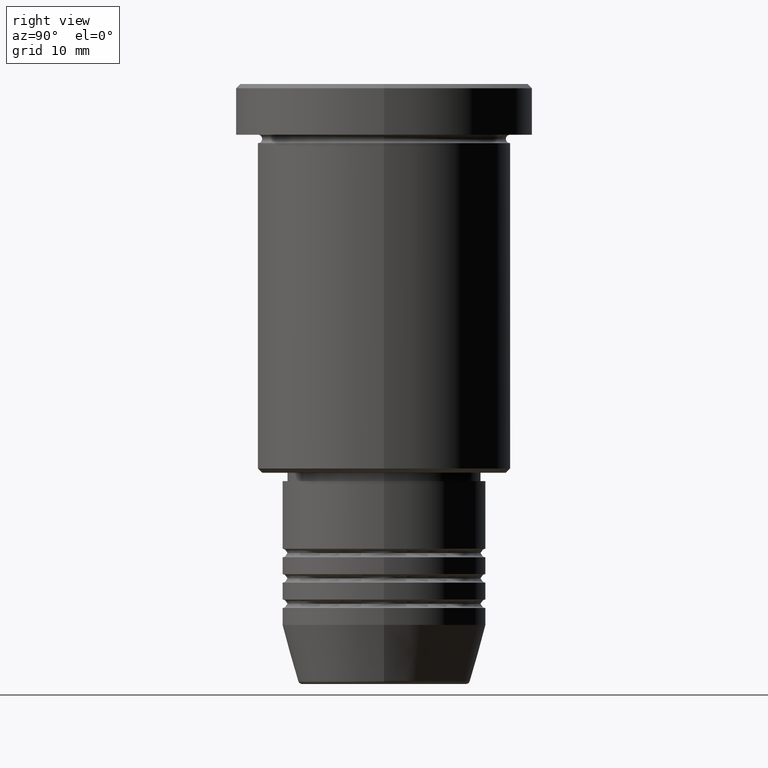
[diagram: clean part render]
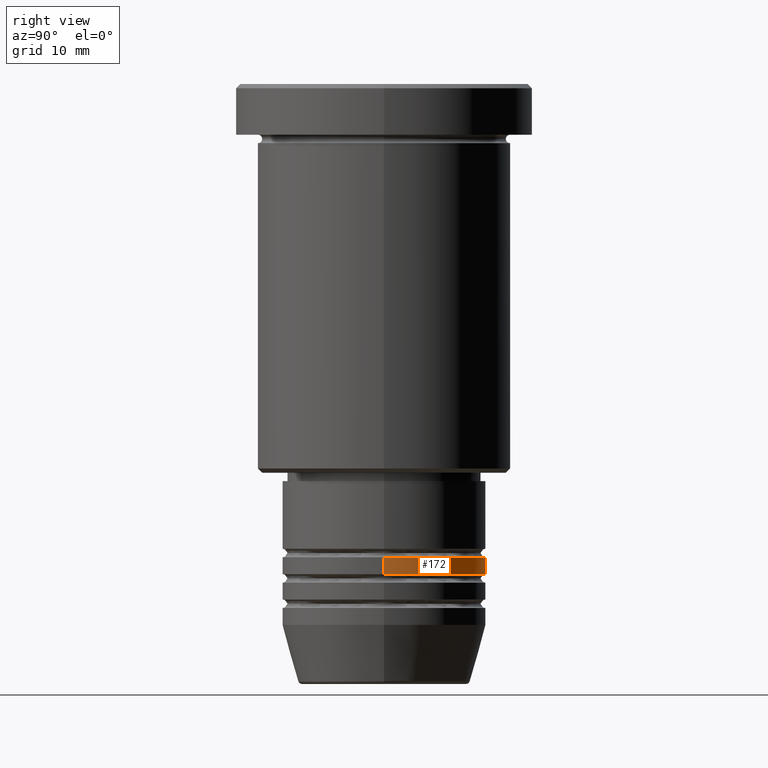
[diagram: same view with one face highlighted and labeled with its STEP entity id]
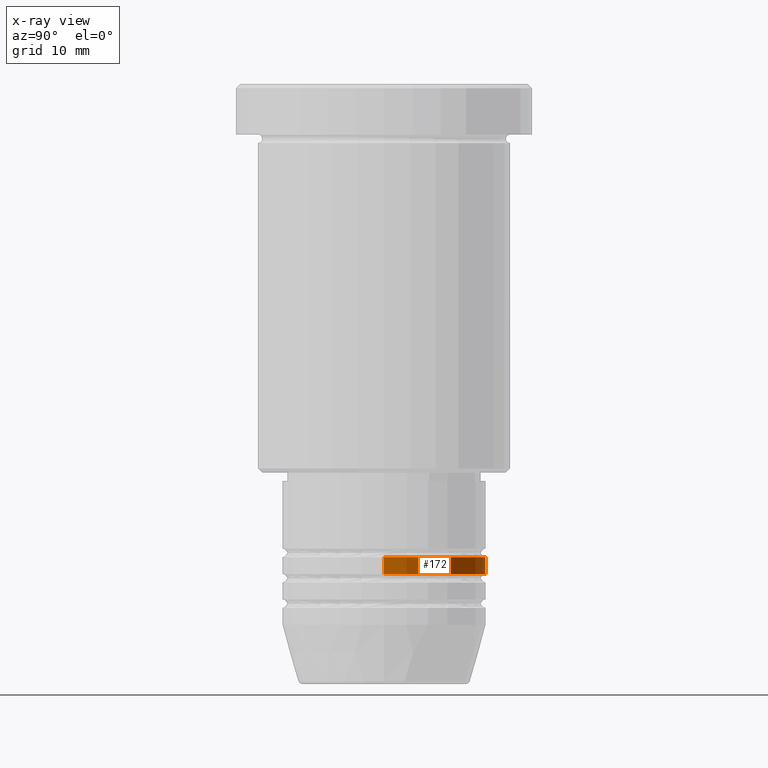
[diagram: x-ray of the same camera — body ghosted, the highlighted face saturated]
A machine part, right view. The second image highlights one B-rep face of the part: STEP entity #172.
The next image is the same camera in x-ray: the body ghosted, the highlighted face saturated — about 0% of this face is hidden behind the body in this view.
In plain terms, the highlighted cylindrical surface (partial cylindrical patch) has radius 12 mm, axis along (-0, -0, 1).
Its self-contained STEP definition (entity closure, byte-faithful):
#38 = CIRCLE ( 'NONE', #549, 12.00000000000000000 ) ;
#64 = DIRECTION ( 'NONE',  ( 1.000000000000000000, 0.000000000000000000, 0.000000000000000000 ) ) ;
#120 = AXIS2_PLACEMENT_3D ( 'NONE', #884, #517, #64 ) ;
#172 = ADVANCED_FACE ( 'NONE', ( #798 ), #245, .T. ) ;
#175 = CARTESIAN_POINT ( 'NONE',  ( 12.00000000000000000, 0.000000000000000000, -55.99999999999997868 ) ) ;
#185 = EDGE_CURVE ( 'NONE', #739, #368, #783, .T. ) ;
#203 = AXIS2_PLACEMENT_3D ( 'NONE', #796, #967, #522 ) ;
#230 = DIRECTION ( 'NONE',  ( -0.000000000000000000, -0.000000000000000000, 1.000000000000000000 ) ) ;
#245 = CYLINDRICAL_SURFACE ( 'NONE', #203, 12.00000000000000000 ) ;
#302 = ORIENTED_EDGE ( 'NONE', *, *, #185, .F. ) ;
#321 = EDGE_CURVE ( 'NONE', #759, #739, #997, .T. ) ;
#363 = CARTESIAN_POINT ( 'NONE',  ( 12.00000000000000000, 0.000000000000000000, 0.000000000000000000 ) ) ;
#368 = VERTEX_POINT ( 'NONE', #1101 ) ;
#398 = CARTESIAN_POINT ( 'NONE',  ( 0.000000000000000000, 0.000000000000000000, -57.99999999999997868 ) ) ;
#442 = EDGE_CURVE ( 'NONE', #1009, #368, #1129, .T. ) ;
#490 = CARTESIAN_POINT ( 'NONE',  ( -12.00000000000000000, 1.469576158976823947E-15, 0.000000000000000000 ) ) ;
#517 = DIRECTION ( 'NONE',  ( -0.000000000000000000, -0.000000000000000000, 1.000000000000000000 ) ) ;
#520 = DIRECTION ( 'NONE',  ( 1.000000000000000000, 0.000000000000000000, 0.000000000000000000 ) ) ;
#522 = DIRECTION ( 'NONE',  ( 1.000000000000000000, 0.000000000000000000, 0.000000000000000000 ) ) ;
#536 = EDGE_CURVE ( 'NONE', #759, #1009, #38, .T. ) ;
#547 = ORIENTED_EDGE ( 'NONE', *, *, #536, .T. ) ;
#549 = AXIS2_PLACEMENT_3D ( 'NONE', #398, #230, #520 ) ;
#619 = CARTESIAN_POINT ( 'NONE',  ( -12.00000000000000000, 1.469576158976823947E-15, -57.99999999999997868 ) ) ;
#621 = ORIENTED_EDGE ( 'NONE', *, *, #321, .F. ) ;
#644 = EDGE_LOOP ( 'NONE', ( #547, #1011, #302, #621 ) ) ;
#712 = VECTOR ( 'NONE', #1088, 1000.000000000000000 ) ;
#739 = VERTEX_POINT ( 'NONE', #175 ) ;
#759 = VERTEX_POINT ( 'NONE', #1174 ) ;
#783 = CIRCLE ( 'NONE', #120, 12.00000000000000000 ) ;
#796 = CARTESIAN_POINT ( 'NONE',  ( 0.000000000000000000, 0.000000000000000000, 0.000000000000000000 ) ) ;
#798 = FACE_OUTER_BOUND ( 'NONE', #644, .T. ) ;
#884 = CARTESIAN_POINT ( 'NONE',  ( 0.000000000000000000, 0.000000000000000000, -55.99999999999997868 ) ) ;
#967 = DIRECTION ( 'NONE',  ( -0.000000000000000000, -0.000000000000000000, 1.000000000000000000 ) ) ;
#997 = LINE ( 'NONE', #363, #712 ) ;
#1009 = VERTEX_POINT ( 'NONE', #619 ) ;
#1011 = ORIENTED_EDGE ( 'NONE', *, *, #442, .T. ) ;
#1038 = DIRECTION ( 'NONE',  ( -0.000000000000000000, -0.000000000000000000, 1.000000000000000000 ) ) ;
#1088 = DIRECTION ( 'NONE',  ( -0.000000000000000000, -0.000000000000000000, 1.000000000000000000 ) ) ;
#1101 = CARTESIAN_POINT ( 'NONE',  ( -12.00000000000000000, 1.469576158976823947E-15, -55.99999999999997868 ) ) ;
#1118 = VECTOR ( 'NONE', #1038, 1000.000000000000000 ) ;
#1129 = LINE ( 'NONE', #490, #1118 ) ;
#1174 = CARTESIAN_POINT ( 'NONE',  ( 12.00000000000000000, 0.000000000000000000, -57.99999999999997868 ) ) ;